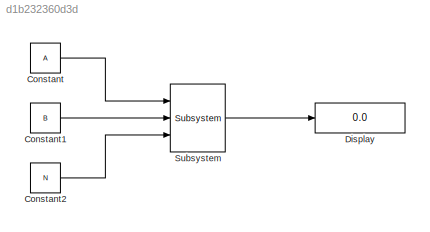
MODEL slx_d1b232360d3d
KIND model
CONFIG AbsTol = auto
CONFIG EnableMultiTasking = off
CONFIG FixedStep = auto
CONFIG MaxStep = auto
CONFIG MinStep = auto
CONFIG RelTol = 1e-3
CONFIG SampleTimeConstraint = Unconstrained
CONFIG Solver = VariableStepAuto
CONFIG SolverName = VariableStepAuto
CONFIG StartTime = 0.0
CONFIG StopTime = 10.0
BLOCK [Constant] Constant
  Value = A
BLOCK [Constant] Constant1
  Value = B
BLOCK [Constant] Constant2
  Value = N
BLOCK [Display] Display
  Decimation = 1
  Ports = [1]
BLOCK [Reference] Subsystem  REF=lib/Subsystem  (lib defined in slx_8e0b7e7613f0, slx_8fc754c0eda6, +7 more)
  Ports = [3, 1]
  SourceBlock = lib/Subsystem
LINE Constant1:1 -> Subsystem:2
LINE Constant2:1 -> Subsystem:3
LINE Constant:1 -> Subsystem:1
LINE Subsystem:1 -> Display:1
